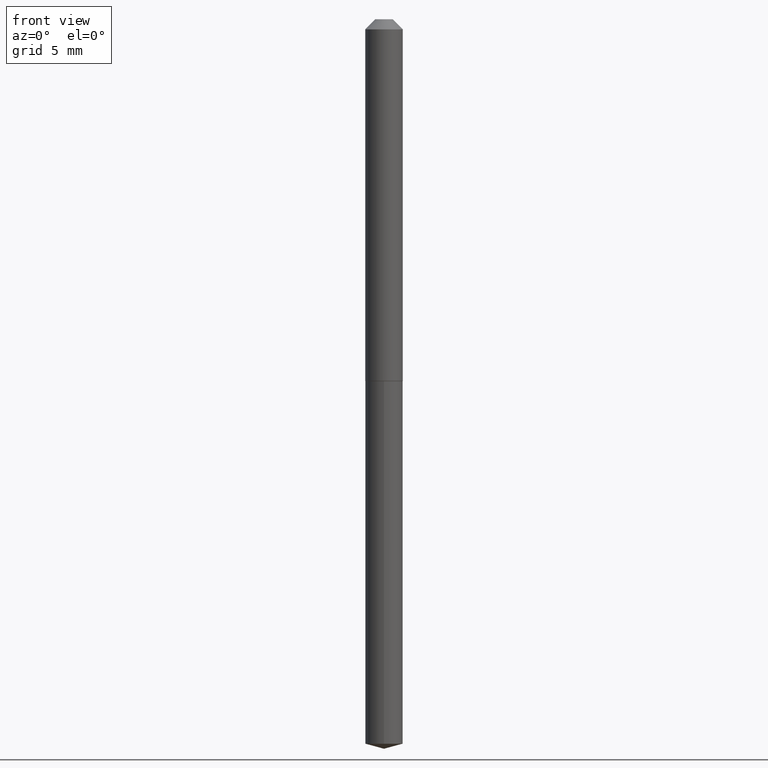
[diagram: clean part render]
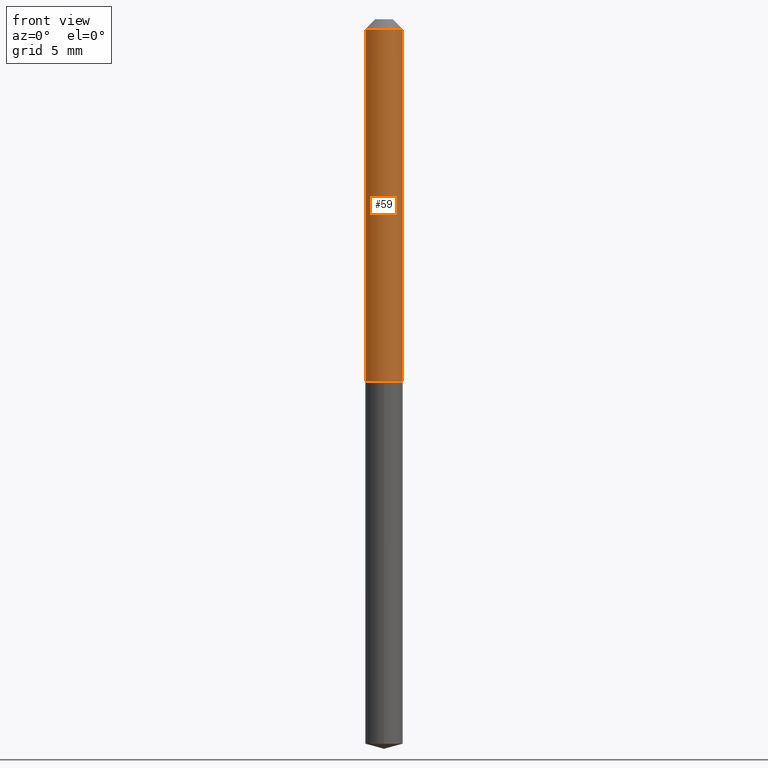
[diagram: same view with one face highlighted and labeled with its STEP entity id]
A machine part, front view. The second image highlights one B-rep face of the part: STEP entity #59.
In plain terms, the highlighted cylindrical surface (edge-blend (fillet) strip) has radius 1.4732 mm, axis along (-0, 0, 1).
Its self-contained STEP definition (entity closure, byte-faithful):
#8 = ORIENTED_EDGE ( 'NONE', *, *, #63, .F. ) ;
#9 = DIRECTION ( 'NONE',  ( -2.445468806185136597E-29, 3.491481338843145583E-15, 1.000000000000000000 ) ) ;
#16 = VERTEX_POINT ( 'NONE', #343 ) ;
#19 = ORIENTED_EDGE ( 'NONE', *, *, #361, .F. ) ;
#25 = DIRECTION ( 'NONE',  ( -2.445468806185136877E-29, 3.491481338843145188E-15, 1.000000000000000000 ) ) ;
#44 = DIRECTION ( 'NONE',  ( -2.445468806185136597E-29, 3.491481338843145583E-15, 1.000000000000000000 ) ) ;
#48 = DIRECTION ( 'NONE',  ( -2.445468806185136877E-29, 3.491481338843145188E-15, 1.000000000000000000 ) ) ;
#49 = CARTESIAN_POINT ( 'NONE',  ( -0.05800000000000014172, -3.482632646738670605E-15, -1.115500000000000158 ) ) ;
#53 = CARTESIAN_POINT ( 'NONE',  ( 7.642090019328602662E-31, -1.091087918388490267E-16, -0.03125000000000020817 ) ) ;
#55 = VERTEX_POINT ( 'NONE', #216 ) ;
#59 = ADVANCED_FACE ( 'NONE', ( #68 ), #280, .T. ) ;
#63 = EDGE_CURVE ( 'NONE', #352, #55, #313, .T. ) ;
#68 = FACE_OUTER_BOUND ( 'NONE', #78, .T. ) ;
#70 = VECTOR ( 'NONE', #48, 39.37007874015748143 ) ;
#71 = DIRECTION ( 'NONE',  ( 1.000000000000000000, -6.982962677686266711E-15, 4.876176775795935793E-29 ) ) ;
#78 = EDGE_LOOP ( 'NONE', ( #8, #86, #179, #19 ) ) ;
#86 = ORIENTED_EDGE ( 'NONE', *, *, #367, .T. ) ;
#99 = CARTESIAN_POINT ( 'NONE',  ( 2.727920453299520488E-29, -3.894747433479529868E-15, -1.115500000000000158 ) ) ;
#112 = CIRCLE ( 'NONE', #294, 0.05800000000000000294 ) ;
#166 = CARTESIAN_POINT ( 'NONE',  ( -0.05800000000000007233, 4.121147867408586217E-16, -2.852982352347848756E-30 ) ) ;
#179 = ORIENTED_EDGE ( 'NONE', *, *, #183, .T. ) ;
#183 = EDGE_CURVE ( 'NONE', #269, #16, #234, .T. ) ;
#216 = CARTESIAN_POINT ( 'NONE',  ( -0.05800000000000000294, -1.589813325918329827E-15, -0.03125000000000020817 ) ) ;
#221 = DIRECTION ( 'NONE',  ( 1.000000000000000000, -6.982962677686265922E-15, 0.000000000000000000 ) ) ;
#234 = LINE ( 'NONE', #322, #292 ) ;
#269 = VERTEX_POINT ( 'NONE', #277 ) ;
#275 = DIRECTION ( 'NONE',  ( -2.445468806185136597E-29, 3.491481338843145583E-15, 1.000000000000000000 ) ) ;
#277 = CARTESIAN_POINT ( 'NONE',  ( 0.05800000000000014172, -4.299759268785333684E-15, -1.115500000000000158 ) ) ;
#280 = CYLINDRICAL_SURFACE ( 'NONE', #282, 0.05800000000000007233 ) ;
#282 = AXIS2_PLACEMENT_3D ( 'NONE', #310, #44, #71 ) ;
#292 = VECTOR ( 'NONE', #25, 39.37007874015748143 ) ;
#294 = AXIS2_PLACEMENT_3D ( 'NONE', #53, #275, #347 ) ;
#302 = CIRCLE ( 'NONE', #320, 0.05800000000000014172 ) ;
#310 = CARTESIAN_POINT ( 'NONE',  ( 0.000000000000000000, 0.000000000000000000, 0.000000000000000000 ) ) ;
#313 = LINE ( 'NONE', #166, #70 ) ;
#320 = AXIS2_PLACEMENT_3D ( 'NONE', #99, #9, #221 ) ;
#322 = CARTESIAN_POINT ( 'NONE',  ( 0.05800000000000007233, -4.050118353058039642E-16, 2.828182529961646347E-30 ) ) ;
#343 = CARTESIAN_POINT ( 'NONE',  ( 0.05800000000000000294, -5.141206271446525225E-16, -0.03125000000000020817 ) ) ;
#347 = DIRECTION ( 'NONE',  ( 1.000000000000000000, -6.982962677686266711E-15, 0.000000000000000000 ) ) ;
#352 = VERTEX_POINT ( 'NONE', #49 ) ;
#361 = EDGE_CURVE ( 'NONE', #55, #16, #112, .T. ) ;
#367 = EDGE_CURVE ( 'NONE', #352, #269, #302, .T. ) ;